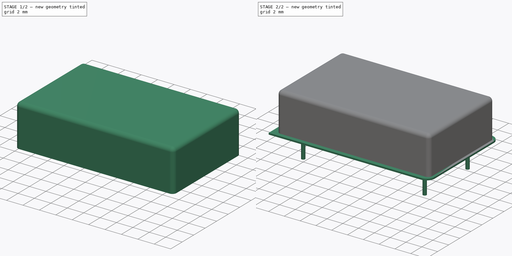
[diagram: build sequence overview — one tinted view per stage of 2, left to right]
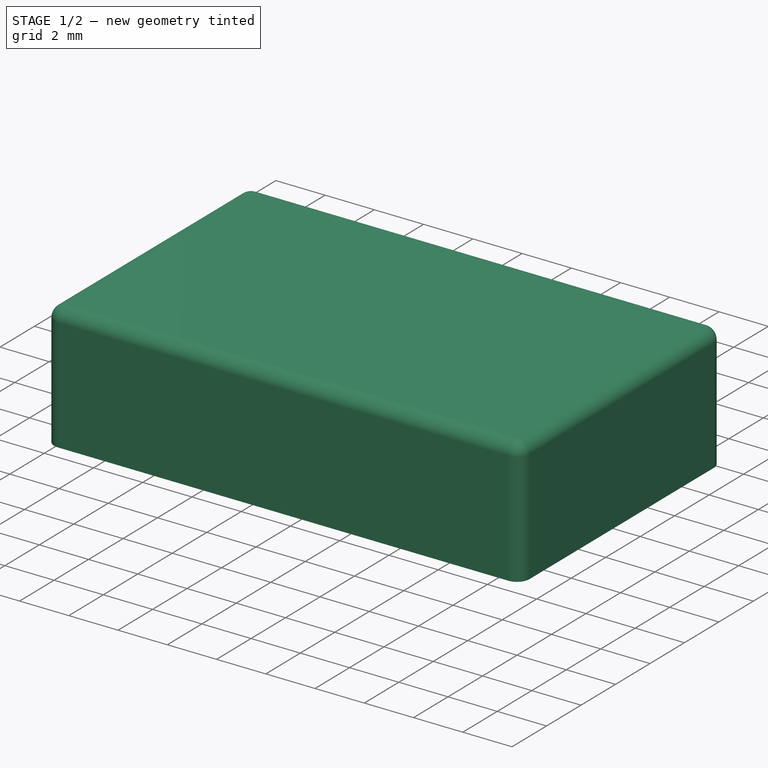
[diagram: stage 1 of 2 — iso view after this stage's code; geometry added in this stage tinted green]
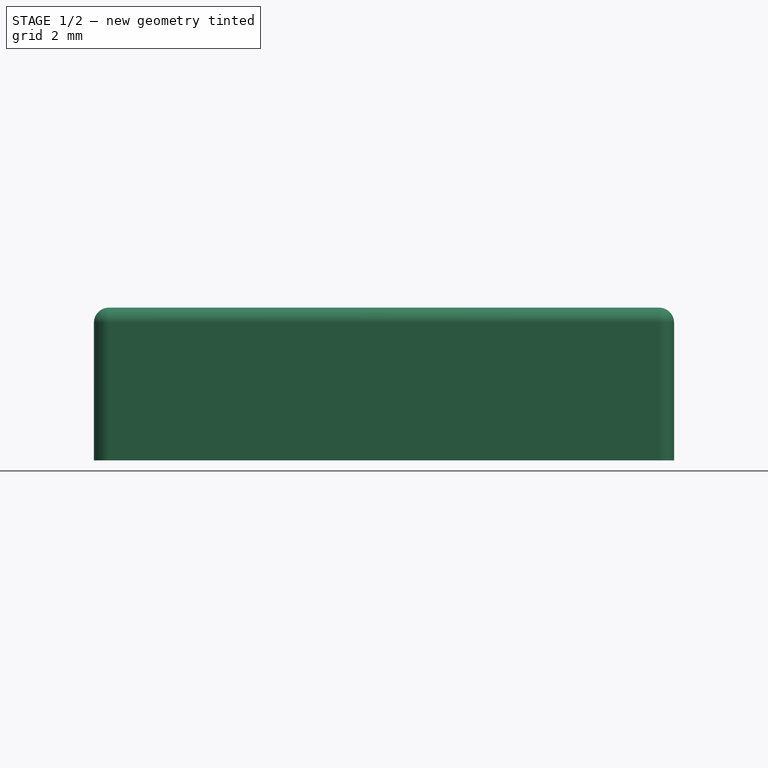
[diagram: stage 1 of 2 — front view after this stage's code; geometry added in this stage tinted green]
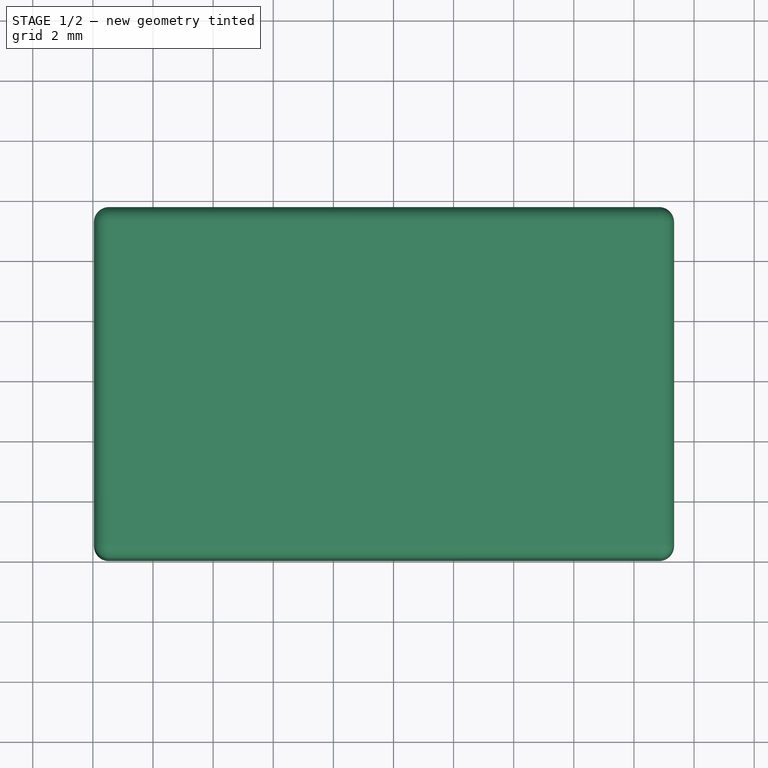
[diagram: stage 1 of 2 — top view after this stage's code; geometry added in this stage tinted green]
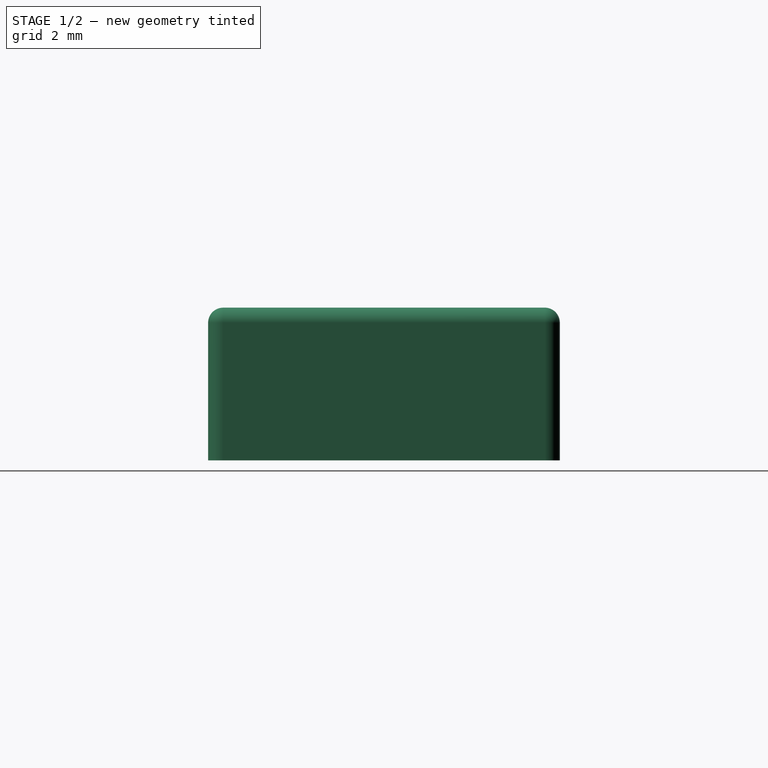
[diagram: stage 1 of 2 — right view after this stage's code; geometry added in this stage tinted green]
FCSTD DOCUMENT  (FreeCAD 0.16R6703 (Git))
Label: Oscillator_DIP-14
License: All rights reserved
LicenseURL: http://en.wikipedia.org/wiki/All_rights_reserved
objects: Sketcher::SketchObject×3, PartDesign::Pad×3, Spreadsheet::Sheet×1, PartDesign::Fillet×1
note: 10 computed .brp shape members not serialized (recipe doc carries the construction recipe); baked Part::Feature solids carry a one-line shape summary decoded from their .brp

FEATURE [Sketcher::SketchObject] Sketch002
  Placement = pos=(0,0,0.8) rot=(0,0,1;0rad)
  expr: Constraints[17] = Spreadsheet.ix
  expr: Constraints[19] = (Spreadsheet.iy - Spreadsheet.py) / 2
  expr: Constraints[18] = Spreadsheet.iy
  expr: Constraints[16] = (Spreadsheet.ix - Spreadsheet.px) / 2
  sketch-geometry (8):
    g0: LineSegment StartX=-1.465 StartY=-1.975 StartZ=0 EndX=16.835 EndY=-1.975 EndZ=0
    g1: LineSegment StartX=17.335 StartY=-1.475 StartZ=0 EndX=17.335 EndY=9.225 EndZ=0
    g2: LineSegment StartX=16.835 StartY=9.725 StartZ=0 EndX=-1.465 EndY=9.725 EndZ=0
    g3: LineSegment StartX=-1.965 StartY=9.225 StartZ=0 EndX=-1.965 EndY=-1.475 EndZ=0
    g4: ArcOfCircle CenterX=-1.465 CenterY=9.225 CenterZ=0 NormalX=0 NormalY=0 NormalZ=1 Radius=0.5 StartAngle=1.5708 EndAngle=3.14159
    g5: ArcOfCircle CenterX=16.835 CenterY=9.225 CenterZ=0 NormalX=0 NormalY=0 NormalZ=1 Radius=0.5 StartAngle=0 EndAngle=1.5708
    g6: ArcOfCircle CenterX=16.835 CenterY=-1.475 CenterZ=0 NormalX=0 NormalY=0 NormalZ=1 Radius=0.5 StartAngle=4.71239 EndAngle=6.28319
    g7: ArcOfCircle CenterX=-1.465 CenterY=-1.475 CenterZ=0 NormalX=0 NormalY=0 NormalZ=1 Radius=0.5 StartAngle=3.14159 EndAngle=4.71239
  constraints (20):
    c: Horizontal(g0)
    c: Horizontal(g2)
    c: Vertical(g1)
    c: Vertical(g3)
    c: Tangent(g3,g4) = -1.5708
    c: Tangent(g2,g4) = -1.5708
    c: Tangent(g2,g5) = -1.5708
    c: Tangent(g1,g5) = -1.5708
    c: Tangent(g1,g6) = -1.5708
    c: Tangent(g0,g6) = -1.5708
    c: Tangent(g0,g7) = -1.5708
    c: Tangent(g3,g7) = -1.5708
    c: Radius(g4) = 0.5
    c: Radius(g7) = 0.5
    c: Radius(g6) = 0.5
    c: Radius(g5) = 0.5
    c: DistanceX(g3,g-1) = 1.965
    c: DistanceX(g3,g1) = 19.3
    c: DistanceY(g0,g2) = 11.7
    c: DistanceY(g0,g-1) = 1.975
FEATURE [PartDesign::Pad] Pad002
  Length = 5.08
  Length2 = 100
  Placement = pos=(0,0,0.8) rot=(0,0,1;0rad)
  Sketch = -> Sketch002
  Type = 0
FEATURE [Spreadsheet::Sheet] Spreadsheet
  cells = A1=px; B1(px)=15.37; A2=py; B2(py)=7.75; A3=wx; B3(wx)=20.3; A4=wy; B4(wy)=12.7; A5=ix; B5(ix)=19.3; A6=iy; B6(iy)=11.7
FEATURE [PartDesign::Fillet] Fillet
  Base = -> Pad002 [Edge24,Edge4,Edge22,Edge19,Edge16,Edge13,Edge10,Edge7]
  Placement = pos=(0,0,0.8) rot=(0,0,1;0rad)
  Radius = 0.5
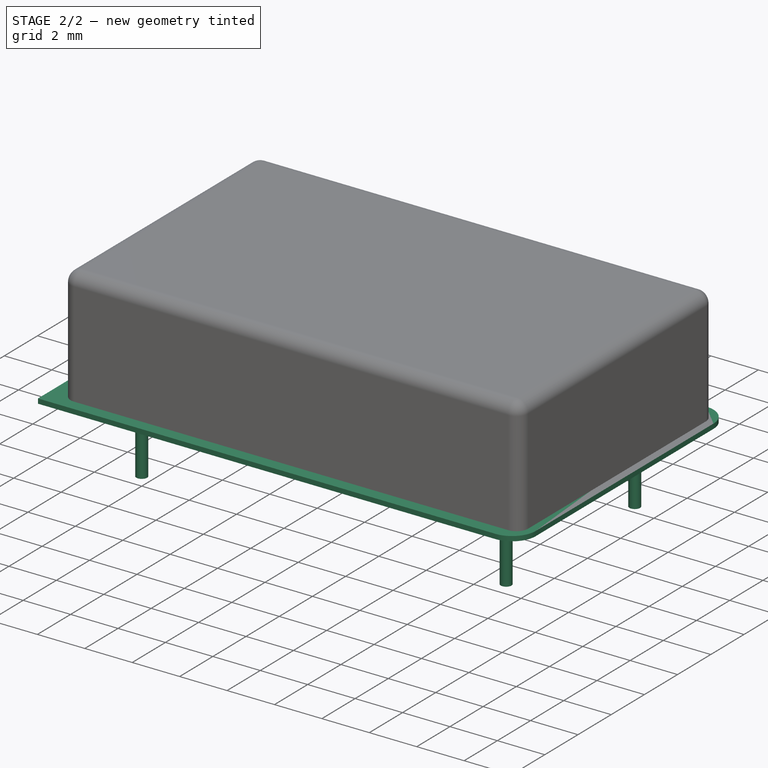
[diagram: stage 2 of 2 — iso view after this stage's code; geometry added in this stage tinted green]
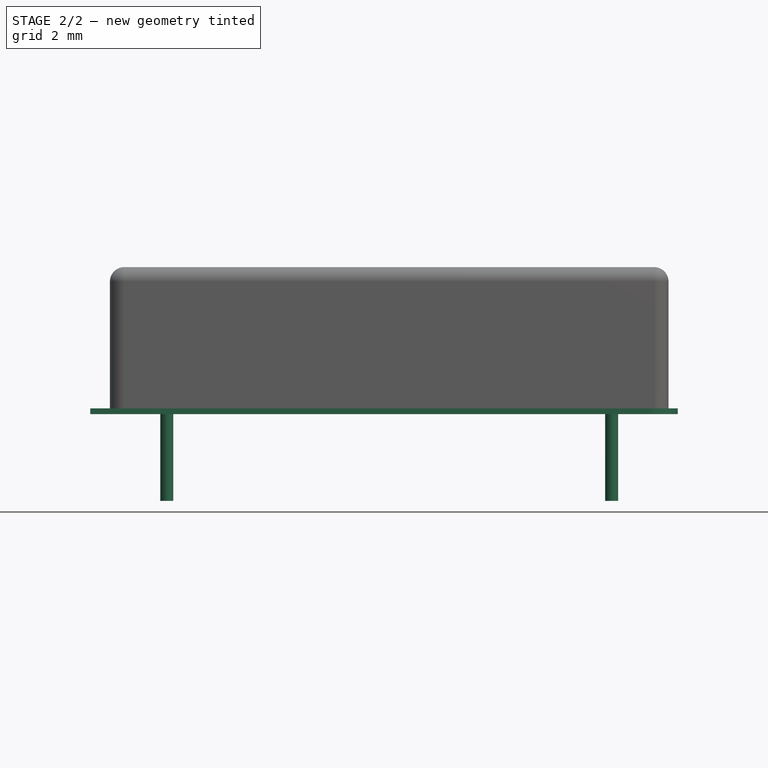
[diagram: stage 2 of 2 — front view after this stage's code; geometry added in this stage tinted green]
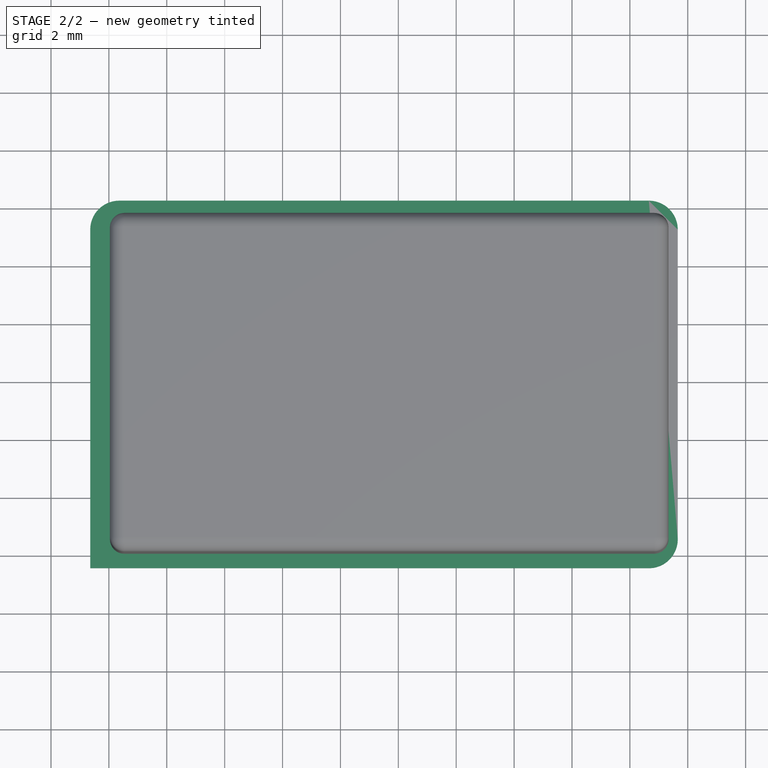
[diagram: stage 2 of 2 — top view after this stage's code; geometry added in this stage tinted green]
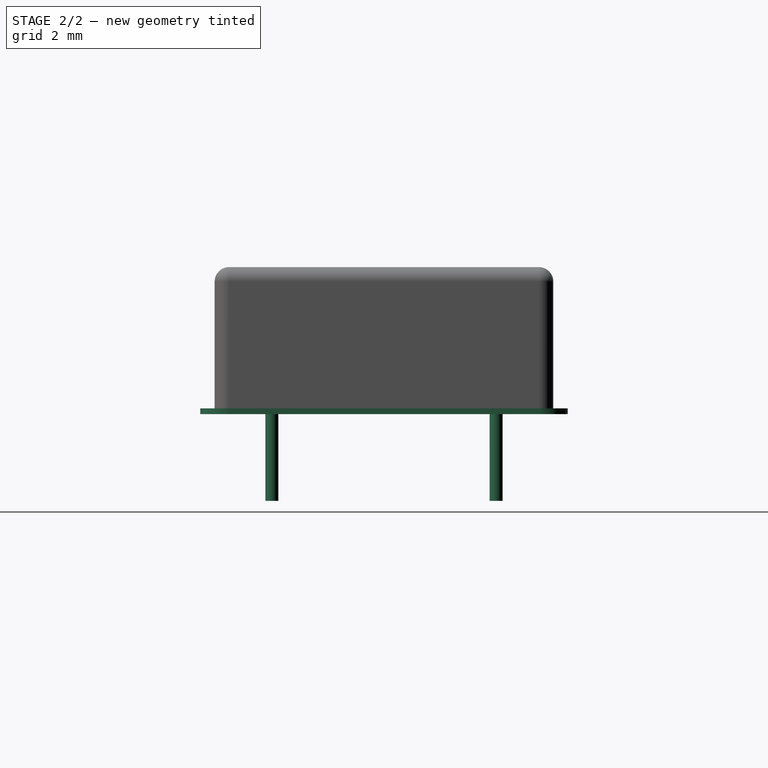
[diagram: stage 2 of 2 — right view after this stage's code; geometry added in this stage tinted green]
FEATURE [Sketcher::SketchObject] Sketch
  Placement = pos=(0,0,0.8) rot=(0,0,1;0rad)
  expr: Constraints[5] = Spreadsheet.py
  expr: Constraints[6] = Spreadsheet.px
  sketch-geometry (4):
    g0: Circle CenterX=0 CenterY=0 CenterZ=0 NormalX=0 NormalY=0 NormalZ=1 Radius=0.225
    g1: Circle CenterX=15.37 CenterY=0 CenterZ=0 NormalX=0 NormalY=0 NormalZ=1 Radius=0.225
    g2: Circle CenterX=15.37 CenterY=7.75 CenterZ=0 NormalX=0 NormalY=0 NormalZ=1 Radius=0.225
    g3: Circle CenterX=0 CenterY=7.75 CenterZ=0 NormalX=0 NormalY=0 NormalZ=1 Radius=0.225
  constraints (11):
    c: Coincident(g0,g-1)
    c: PointOnObject(g1,g-1)
    c: DistanceX(g-1,g3) = 0
    c: DistanceX(g1,g2) = 0
    c: DistanceY(g2,g3) = 0
    c: DistanceY(g-1,g3) = 7.75
    c: DistanceX(g-1,g1) = 15.37
    c: Radius(g3) = 0.225
    c: Radius(g0) = 0.225
    c: Radius(g1) = 0.225
    c: Radius(g2) = 0.225
FEATURE [PartDesign::Pad] Pad
  Length = 3
  Length2 = 100
  Placement = pos=(0,0,0.8) rot=(0,0,1;0rad)
  Reversed = true
  Sketch = -> Sketch
  Type = 0
FEATURE [Sketcher::SketchObject] Sketch001
  Placement = pos=(0,0,0.8) rot=(0,0,1;0rad)
  expr: Constraints[6] = (Spreadsheet.wy - Spreadsheet.py) / 2
  expr: Constraints[17] = Spreadsheet.wy
  expr: Constraints[16] = Spreadsheet.wx
  sketch-geometry (7):
    g0: LineSegment StartX=-2.645 StartY=-2.475 StartZ=0 EndX=16.655 EndY=-2.475 EndZ=0
    g1: LineSegment StartX=17.655 StartY=-1.475 StartZ=0 EndX=17.655 EndY=9.225 EndZ=0
    g2: LineSegment StartX=16.655 StartY=10.225 StartZ=0 EndX=-1.645 EndY=10.225 EndZ=0
    g3: LineSegment StartX=-2.645 StartY=9.225 StartZ=0 EndX=-2.645 EndY=-2.475 EndZ=0
    g4: ArcOfCircle CenterX=-1.645 CenterY=9.225 CenterZ=0 NormalX=0 NormalY=0 NormalZ=1 Radius=1 StartAngle=1.5708 EndAngle=3.14159
    g5: ArcOfCircle CenterX=16.655 CenterY=9.225 CenterZ=0 NormalX=0 NormalY=0 NormalZ=1 Radius=1 StartAngle=0 EndAngle=1.5708
    g6: ArcOfCircle CenterX=16.655 CenterY=-1.475 CenterZ=0 NormalX=0 NormalY=0 NormalZ=1 Radius=1 StartAngle=4.71239 EndAngle=6.28319
  constraints (18):
    c: Coincident(g3,g0)
    c: Horizontal(g0)
    c: Horizontal(g2)
    c: Vertical(g1)
    c: Vertical(g3)
    c: DistanceX(g0,g-1) = 2.645
    c: DistanceY(g0,g-1) = 2.475
    c: Tangent(g3,g4) = -1.5708
    c: Tangent(g2,g4) = -1.5708
    c: Tangent(g2,g5) = -1.5708
    c: Tangent(g1,g5) = -1.5708
    c: Tangent(g1,g6) = -1.5708
    c: Tangent(g0,g6) = -1.5708
    c: Radius(g4) = 1
    c: Radius(g5) = 1
    c: Radius(g6) = 1
    c: DistanceX(g0,g1) = 20.3
    c: DistanceY(g0,g2) = 12.7
FEATURE [PartDesign::Pad] Pad001
  Length = 0.2
  Length2 = 100
  Placement = pos=(0,0,0.8) rot=(0,0,1;0rad)
  Sketch = -> Sketch001
  Type = 0
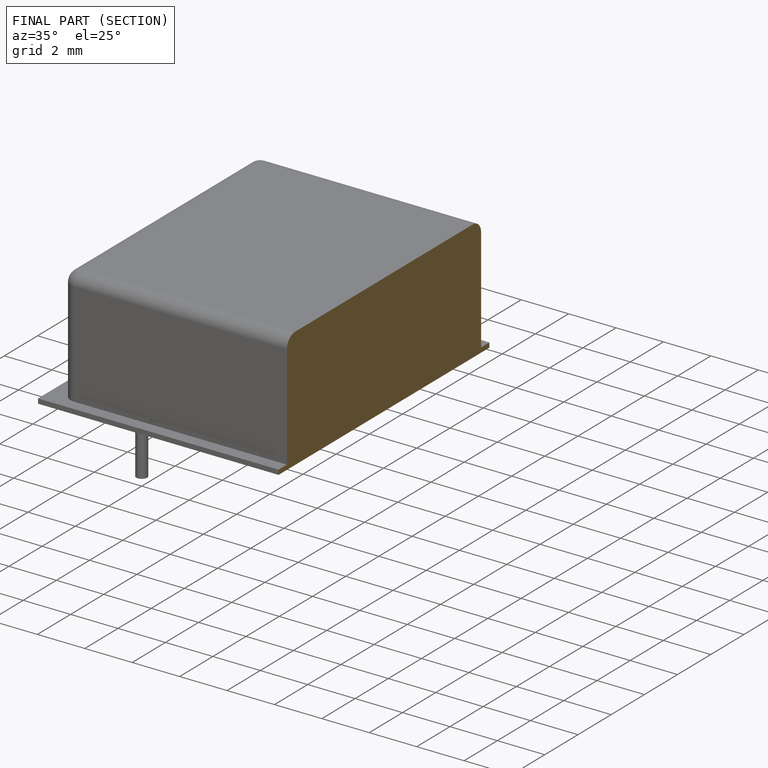
[diagram: finished part — half-section view (interior)]
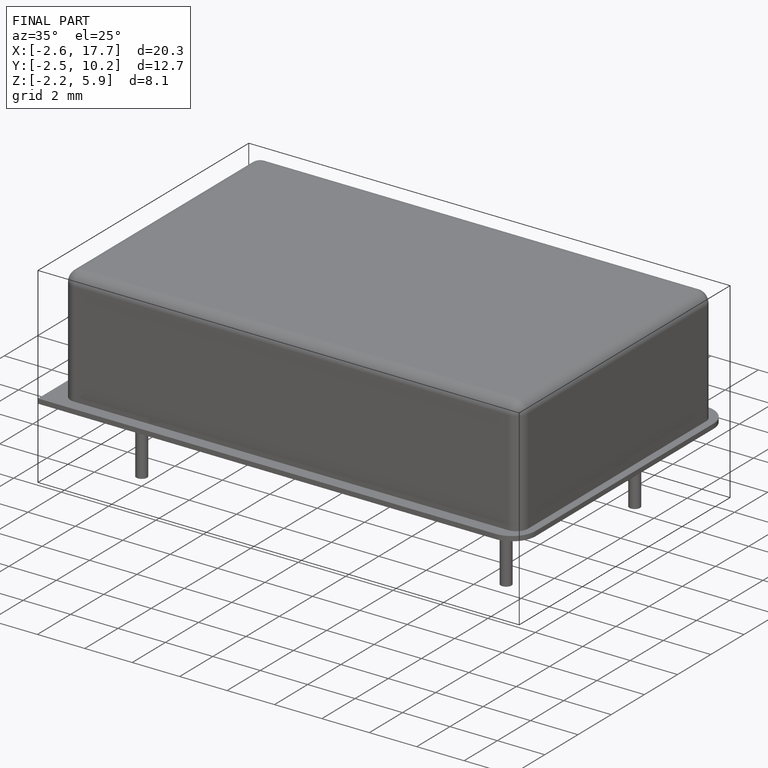
[diagram: finished part — iso view with bounding-box wireframe]
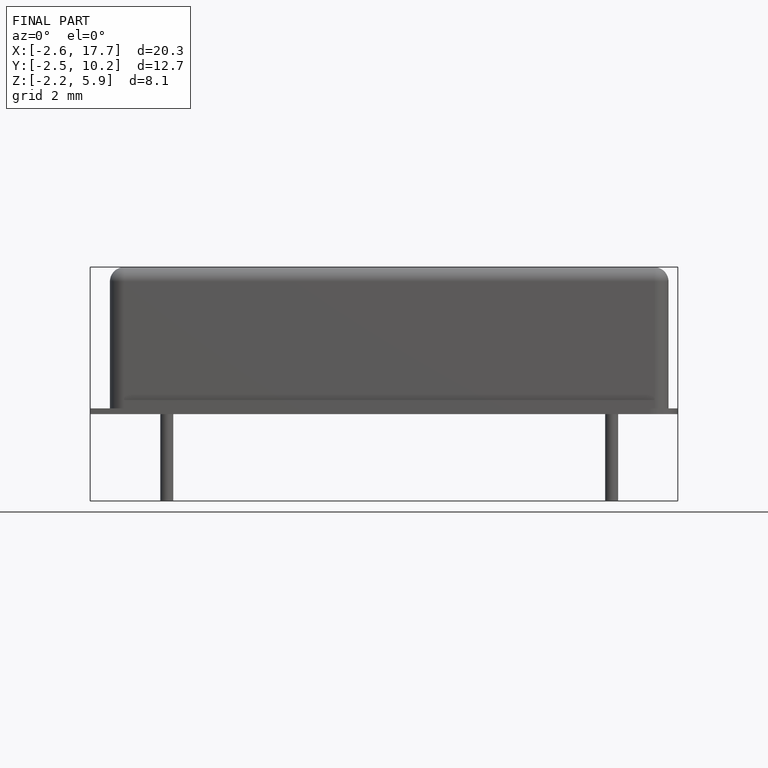
[diagram: finished part — front view with bounding-box wireframe]
